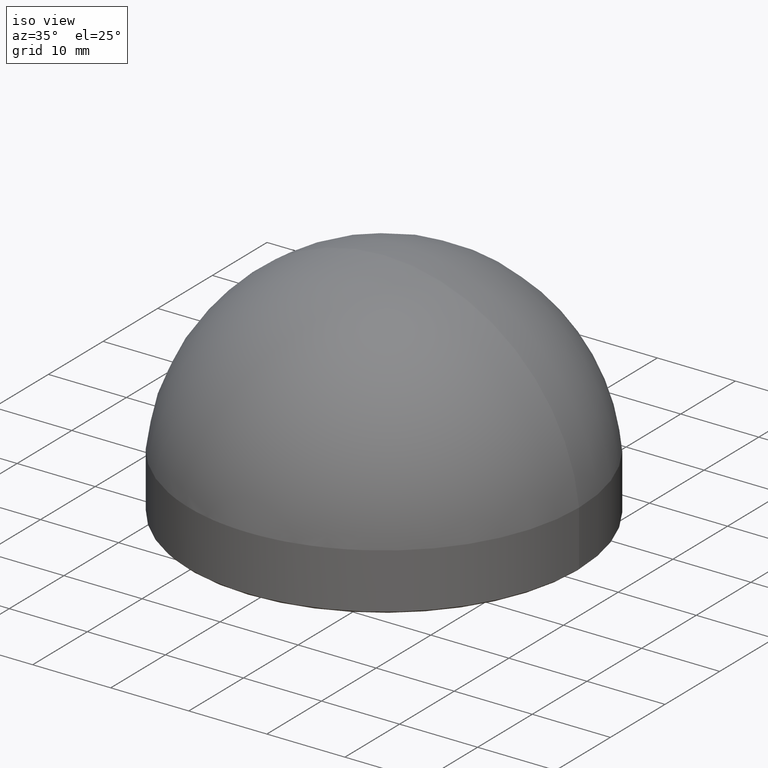
[diagram: clean part render]
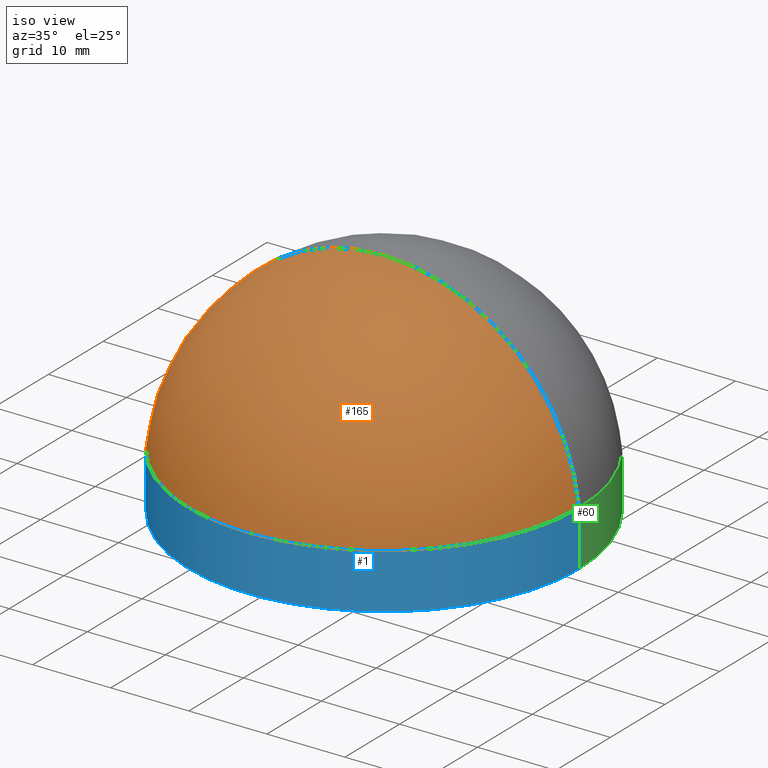
[diagram: same view with three faces highlighted in distinct colors, each labeled with its STEP entity id]
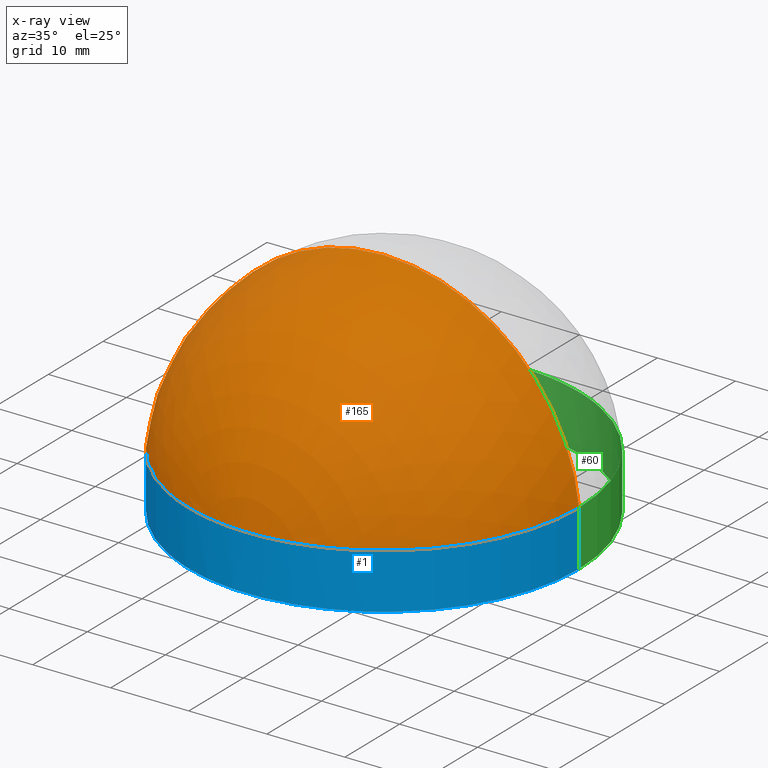
[diagram: x-ray of the same camera — body ghosted, the three highlighted faces saturated]
A machine part, iso view with three faces highlighted in distinct colors.
The next image is the same camera in x-ray (body ghosted, the three faces saturated) — at least one of them is partly hidden behind the body in this view.
Their STEP definitions:

[orange] entity #165 — the highlighted spherical surface has radius 25.1331 mm.
#35 = DIRECTION ( 'NONE',  ( 1.000000000000000000, -1.224646799147353454E-16, 0.000000000000000000 ) ) ;
#36 = CARTESIAN_POINT ( 'NONE',  ( 25.00000000000000000, 3.061616997868383043E-15, 7.299999999999999822 ) ) ;
#39 = VERTEX_POINT ( 'NONE', #111 ) ;
#43 = AXIS2_PLACEMENT_3D ( 'NONE', #72, #156, #144 ) ;
#50 = DIRECTION ( 'NONE',  ( -1.000000000000000000, 0.000000000000000000, 0.000000000000000000 ) ) ;
#52 = DIRECTION ( 'NONE',  ( 0.000000000000000000, 0.000000000000000000, 1.000000000000000000 ) ) ;
#72 = CARTESIAN_POINT ( 'NONE',  ( 0.000000000000000000, 0.000000000000000000, 7.299999999999999822 ) ) ;
#76 = CIRCLE ( 'NONE', #136, 25.13309312638581261 ) ;
#79 = CARTESIAN_POINT ( 'NONE',  ( 0.000000000000000000, 0.000000000000000000, 4.716906873614187923 ) ) ;
#80 = AXIS2_PLACEMENT_3D ( 'NONE', #79, #152, #35 ) ;
#84 = CARTESIAN_POINT ( 'NONE',  ( 0.000000000000000000, 0.000000000000000000, 4.716906873614187923 ) ) ;
#87 = VERTEX_POINT ( 'NONE', #115 ) ;
#98 = CIRCLE ( 'NONE', #80, 25.13309312638581261 ) ;
#111 = CARTESIAN_POINT ( 'NONE',  ( -1.538958102495036695E-15, 0.000000000000000000, 29.85000000000000142 ) ) ;
#115 = CARTESIAN_POINT ( 'NONE',  ( -25.00000000000000000, 0.000000000000000000, 7.299999999999999822 ) ) ;
#124 = ORIENTED_EDGE ( 'NONE', *, *, #208, .T. ) ;
#135 = SPHERICAL_SURFACE ( 'NONE', #168, 25.13309312638581261 ) ;
#136 = AXIS2_PLACEMENT_3D ( 'NONE', #137, #206, #52 ) ;
#137 = CARTESIAN_POINT ( 'NONE',  ( 0.000000000000000000, 0.000000000000000000, 4.716906873614187923 ) ) ;
#139 = EDGE_CURVE ( 'NONE', #149, #39, #98, .T. ) ;
#144 = DIRECTION ( 'NONE',  ( 1.000000000000000000, 0.000000000000000000, 0.000000000000000000 ) ) ;
#149 = VERTEX_POINT ( 'NONE', #36 ) ;
#152 = DIRECTION ( 'NONE',  ( -1.224646799147353207E-16, -1.000000000000000000, -0.000000000000000000 ) ) ;
#154 = FACE_OUTER_BOUND ( 'NONE', #211, .T. ) ;
#156 = DIRECTION ( 'NONE',  ( 0.000000000000000000, 0.000000000000000000, 1.000000000000000000 ) ) ;
#158 = ORIENTED_EDGE ( 'NONE', *, *, #202, .F. ) ;
#163 = ORIENTED_EDGE ( 'NONE', *, *, #139, .T. ) ;
#165 = ADVANCED_FACE ( 'NONE', ( #154 ), #135, .T. ) ;
#168 = AXIS2_PLACEMENT_3D ( 'NONE', #84, #203, #50 ) ;
#183 = CIRCLE ( 'NONE', #43, 25.00000000000000000 ) ;
#202 = EDGE_CURVE ( 'NONE', #87, #39, #76, .T. ) ;
#203 = DIRECTION ( 'NONE',  ( -0.000000000000000000, -1.000000000000000000, 0.000000000000000000 ) ) ;
#206 = DIRECTION ( 'NONE',  ( 0.000000000000000000, 1.000000000000000000, 0.000000000000000000 ) ) ;
#208 = EDGE_CURVE ( 'NONE', #87, #149, #183, .T. ) ;
#211 = EDGE_LOOP ( 'NONE', ( #124, #163, #158 ) ) ;

[blue] entity #1 — the highlighted cylindrical surface (partial cylindrical patch) has radius 25 mm, axis along (-0, -0, -1).
#1 = ADVANCED_FACE ( 'NONE', ( #209 ), #108, .T. ) ;
#4 = CARTESIAN_POINT ( 'NONE',  ( 0.000000000000000000, 0.000000000000000000, 0.2000000000000196065 ) ) ;
#12 = VECTOR ( 'NONE', #138, 1000.000000000000000 ) ;
#20 = VECTOR ( 'NONE', #63, 1000.000000000000000 ) ;
#26 = VERTEX_POINT ( 'NONE', #197 ) ;
#28 = CARTESIAN_POINT ( 'NONE',  ( -25.00000000000000000, 0.000000000000000000, 7.299999999999999822 ) ) ;
#34 = LINE ( 'NONE', #190, #12 ) ;
#36 = CARTESIAN_POINT ( 'NONE',  ( 25.00000000000000000, 3.061616997868383043E-15, 7.299999999999999822 ) ) ;
#43 = AXIS2_PLACEMENT_3D ( 'NONE', #72, #156, #144 ) ;
#47 = DIRECTION ( 'NONE',  ( -0.000000000000000000, -0.000000000000000000, 1.000000000000000000 ) ) ;
#53 = EDGE_CURVE ( 'NONE', #87, #26, #177, .T. ) ;
#57 = DIRECTION ( 'NONE',  ( -1.000000000000000000, 0.000000000000000000, 0.000000000000000000 ) ) ;
#63 = DIRECTION ( 'NONE',  ( -0.000000000000000000, -0.000000000000000000, -1.000000000000000000 ) ) ;
#72 = CARTESIAN_POINT ( 'NONE',  ( 0.000000000000000000, 0.000000000000000000, 7.299999999999999822 ) ) ;
#87 = VERTEX_POINT ( 'NONE', #115 ) ;
#102 = DIRECTION ( 'NONE',  ( 1.000000000000000000, 0.000000000000000000, 0.000000000000000000 ) ) ;
#103 = CIRCLE ( 'NONE', #148, 25.00000000000000000 ) ;
#105 = EDGE_CURVE ( 'NONE', #26, #207, #103, .T. ) ;
#108 = CYLINDRICAL_SURFACE ( 'NONE', #179, 25.00000000000000000 ) ;
#113 = CARTESIAN_POINT ( 'NONE',  ( 0.000000000000000000, 0.000000000000000000, 7.299999999999999822 ) ) ;
#114 = ORIENTED_EDGE ( 'NONE', *, *, #208, .F. ) ;
#115 = CARTESIAN_POINT ( 'NONE',  ( -25.00000000000000000, 0.000000000000000000, 7.299999999999999822 ) ) ;
#120 = EDGE_CURVE ( 'NONE', #149, #207, #34, .T. ) ;
#138 = DIRECTION ( 'NONE',  ( -0.000000000000000000, -0.000000000000000000, -1.000000000000000000 ) ) ;
#144 = DIRECTION ( 'NONE',  ( 1.000000000000000000, 0.000000000000000000, 0.000000000000000000 ) ) ;
#145 = EDGE_LOOP ( 'NONE', ( #199, #114, #164, #159 ) ) ;
#148 = AXIS2_PLACEMENT_3D ( 'NONE', #4, #47, #102 ) ;
#149 = VERTEX_POINT ( 'NONE', #36 ) ;
#155 = DIRECTION ( 'NONE',  ( -0.000000000000000000, -0.000000000000000000, -1.000000000000000000 ) ) ;
#156 = DIRECTION ( 'NONE',  ( 0.000000000000000000, 0.000000000000000000, 1.000000000000000000 ) ) ;
#159 = ORIENTED_EDGE ( 'NONE', *, *, #105, .T. ) ;
#164 = ORIENTED_EDGE ( 'NONE', *, *, #53, .T. ) ;
#177 = LINE ( 'NONE', #28, #20 ) ;
#179 = AXIS2_PLACEMENT_3D ( 'NONE', #113, #155, #57 ) ;
#183 = CIRCLE ( 'NONE', #43, 25.00000000000000000 ) ;
#189 = CARTESIAN_POINT ( 'NONE',  ( 25.00000000000000000, 3.061616997868383043E-15, 0.2000000000000196065 ) ) ;
#190 = CARTESIAN_POINT ( 'NONE',  ( 25.00000000000000000, 3.061616997868383043E-15, 7.299999999999999822 ) ) ;
#197 = CARTESIAN_POINT ( 'NONE',  ( -25.00000000000000000, 0.000000000000000000, 0.2000000000000196065 ) ) ;
#199 = ORIENTED_EDGE ( 'NONE', *, *, #120, .F. ) ;
#207 = VERTEX_POINT ( 'NONE', #189 ) ;
#208 = EDGE_CURVE ( 'NONE', #87, #149, #183, .T. ) ;
#209 = FACE_OUTER_BOUND ( 'NONE', #145, .T. ) ;

[green] entity #60 — the highlighted cylindrical surface (partial cylindrical patch) has radius 25 mm, axis along (-0, -0, -1).
#9 = ORIENTED_EDGE ( 'NONE', *, *, #120, .T. ) ;
#11 = FACE_OUTER_BOUND ( 'NONE', #30, .T. ) ;
#12 = VECTOR ( 'NONE', #138, 1000.000000000000000 ) ;
#20 = VECTOR ( 'NONE', #63, 1000.000000000000000 ) ;
#26 = VERTEX_POINT ( 'NONE', #197 ) ;
#28 = CARTESIAN_POINT ( 'NONE',  ( -25.00000000000000000, 0.000000000000000000, 7.299999999999999822 ) ) ;
#30 = EDGE_LOOP ( 'NONE', ( #122, #9, #162, #96 ) ) ;
#31 = EDGE_CURVE ( 'NONE', #149, #87, #101, .T. ) ;
#33 = DIRECTION ( 'NONE',  ( -0.000000000000000000, -0.000000000000000000, -1.000000000000000000 ) ) ;
#34 = LINE ( 'NONE', #190, #12 ) ;
#36 = CARTESIAN_POINT ( 'NONE',  ( 25.00000000000000000, 3.061616997868383043E-15, 7.299999999999999822 ) ) ;
#42 = DIRECTION ( 'NONE',  ( 1.000000000000000000, 0.000000000000000000, 0.000000000000000000 ) ) ;
#44 = CARTESIAN_POINT ( 'NONE',  ( 0.000000000000000000, 0.000000000000000000, 7.299999999999999822 ) ) ;
#51 = CIRCLE ( 'NONE', #198, 25.00000000000000000 ) ;
#53 = EDGE_CURVE ( 'NONE', #87, #26, #177, .T. ) ;
#60 = ADVANCED_FACE ( 'NONE', ( #11 ), #61, .T. ) ;
#61 = CYLINDRICAL_SURFACE ( 'NONE', #62, 25.00000000000000000 ) ;
#62 = AXIS2_PLACEMENT_3D ( 'NONE', #44, #33, #132 ) ;
#63 = DIRECTION ( 'NONE',  ( -0.000000000000000000, -0.000000000000000000, -1.000000000000000000 ) ) ;
#66 = DIRECTION ( 'NONE',  ( -0.000000000000000000, -0.000000000000000000, 1.000000000000000000 ) ) ;
#71 = CARTESIAN_POINT ( 'NONE',  ( 0.000000000000000000, 0.000000000000000000, 7.299999999999999822 ) ) ;
#87 = VERTEX_POINT ( 'NONE', #115 ) ;
#96 = ORIENTED_EDGE ( 'NONE', *, *, #53, .F. ) ;
#99 = CARTESIAN_POINT ( 'NONE',  ( 0.000000000000000000, 0.000000000000000000, 0.2000000000000196065 ) ) ;
#101 = CIRCLE ( 'NONE', #116, 25.00000000000000000 ) ;
#115 = CARTESIAN_POINT ( 'NONE',  ( -25.00000000000000000, 0.000000000000000000, 7.299999999999999822 ) ) ;
#116 = AXIS2_PLACEMENT_3D ( 'NONE', #71, #126, #42 ) ;
#120 = EDGE_CURVE ( 'NONE', #149, #207, #34, .T. ) ;
#122 = ORIENTED_EDGE ( 'NONE', *, *, #31, .F. ) ;
#126 = DIRECTION ( 'NONE',  ( 0.000000000000000000, 0.000000000000000000, 1.000000000000000000 ) ) ;
#132 = DIRECTION ( 'NONE',  ( -1.000000000000000000, 0.000000000000000000, 0.000000000000000000 ) ) ;
#134 = DIRECTION ( 'NONE',  ( 1.000000000000000000, 0.000000000000000000, 0.000000000000000000 ) ) ;
#138 = DIRECTION ( 'NONE',  ( -0.000000000000000000, -0.000000000000000000, -1.000000000000000000 ) ) ;
#149 = VERTEX_POINT ( 'NONE', #36 ) ;
#162 = ORIENTED_EDGE ( 'NONE', *, *, #169, .T. ) ;
#169 = EDGE_CURVE ( 'NONE', #207, #26, #51, .T. ) ;
#177 = LINE ( 'NONE', #28, #20 ) ;
#189 = CARTESIAN_POINT ( 'NONE',  ( 25.00000000000000000, 3.061616997868383043E-15, 0.2000000000000196065 ) ) ;
#190 = CARTESIAN_POINT ( 'NONE',  ( 25.00000000000000000, 3.061616997868383043E-15, 7.299999999999999822 ) ) ;
#197 = CARTESIAN_POINT ( 'NONE',  ( -25.00000000000000000, 0.000000000000000000, 0.2000000000000196065 ) ) ;
#198 = AXIS2_PLACEMENT_3D ( 'NONE', #99, #66, #134 ) ;
#207 = VERTEX_POINT ( 'NONE', #189 ) ;